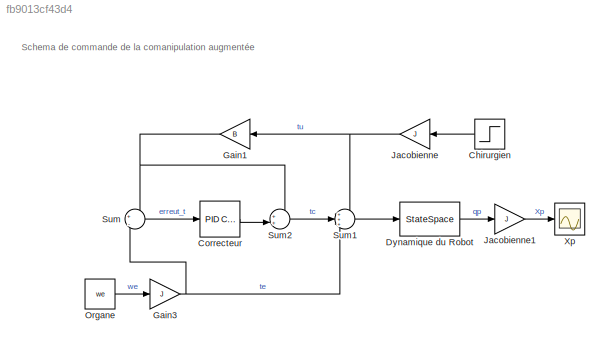
MODEL slx_fb9013cf43d4
KIND model
CONFIG AbsTol = auto
CONFIG EnableMultiTasking = off
CONFIG FixedStep = auto
CONFIG MaxStep = auto
CONFIG MinStep = auto
CONFIG RelTol = 1e-3
CONFIG SampleTimeConstraint = Unconstrained
CONFIG SolverName = VariableStepAuto
CONFIG StartTime = 0.0
CONFIG StopTime = 10.0
BLOCK [Step] Chirurgien
  After = wu
  Before = w0
  NameLocation = top
  SampleTime = 0
  VectorParams1D = off
BLOCK [Reference] Correcteur  REF=slpidlib/PID Controller
  SourceBlock = slpidlib/PID Controller
  SourceType = PID 1dof
BLOCK [StateSpace] Dynamique du Robot
  InitialCondition = 0
BLOCK [Gain] Gain1
  Gain = B
  Multiplication = Matrix(K*u)
  NameLocation = top
BLOCK [Gain] Gain3
  Gain = J
  Multiplication = Matrix(K*u)
BLOCK [Gain] Jacobienne
  Gain = J
  Multiplication = Matrix(K*u)
BLOCK [Gain] Jacobienne1
  Gain = J
  Multiplication = Matrix(K*u)
  NameLocation = top
BLOCK [Constant] Organe
  SampleTime = -1
  Value = we
  VectorParams1D = off
BLOCK [Sum] Sum
  Inputs = +|-
BLOCK [Sum] Sum1
  Inputs = +++
BLOCK [Sum] Sum2
  Inputs = ++|
BLOCK [Scope] Xp
  Floating = off
  NumInputPorts = 1
  ScopeSpecificationString = Simulink.scopes.TimeScopeBlockCfg('CurrentConfiguration', extmgr.ConfigurationSet(extmgr.Configuration('Core','General UI',true),extmgr.Configuration('Core','Source UI',true),extmgr.Configuration('Sources','WiredSimulink',true),extmgr.Configuration('Visuals','Time Domain',true),extmgr.Configuration('Tools','Plot Navigation',true),extmgr.Configuration('Tools','Measurements',true)),'Version','2020b'...<+1ch>
ANNOTATION (root): Schema de commande de la comanipulation augmentée
LINE Chirurgien:1 -> Jacobienne:1
LINE Correcteur:1 -> Sum2:2
LINE Dynamique du Robot:1 -> Jacobienne1:1
NET Gain1:1 -> Sum2:1, Sum:1
NET Gain3:1 -> Sum1:3, Sum:2
LINE Jacobienne1:1 -> Xp:1
NET Jacobienne:1 -> Gain1:1, Sum1:1
LINE Organe:1 -> Gain3:1
LINE Sum1:1 -> Dynamique du Robot:1
LINE Sum2:1 -> Sum1:2
LINE Sum:1 -> Correcteur:1
note: NET lines group one-source signal fan-out (src -> all destinations, sorted); 1:1 wires keep LINE
